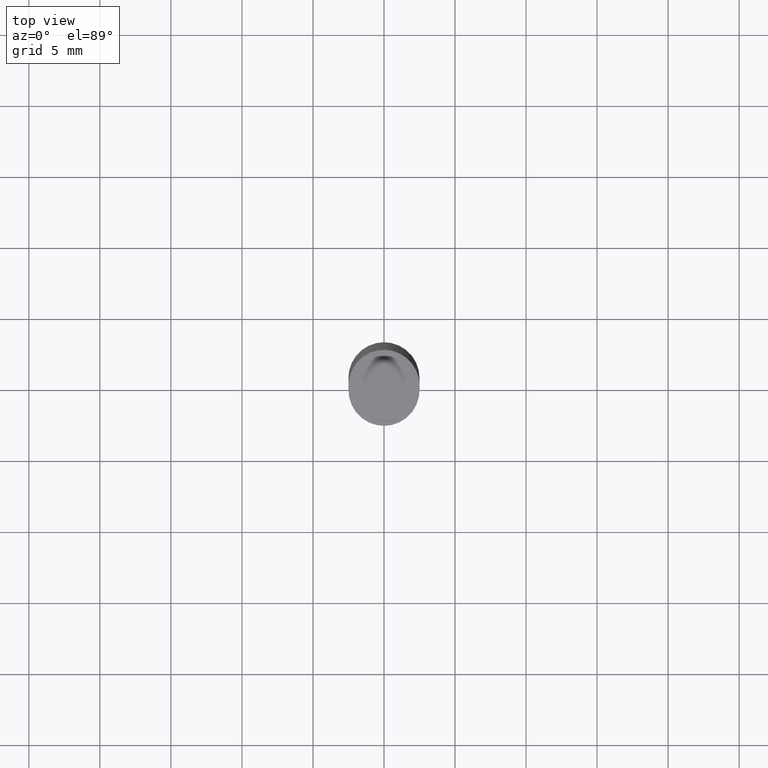
[diagram: clean part render]
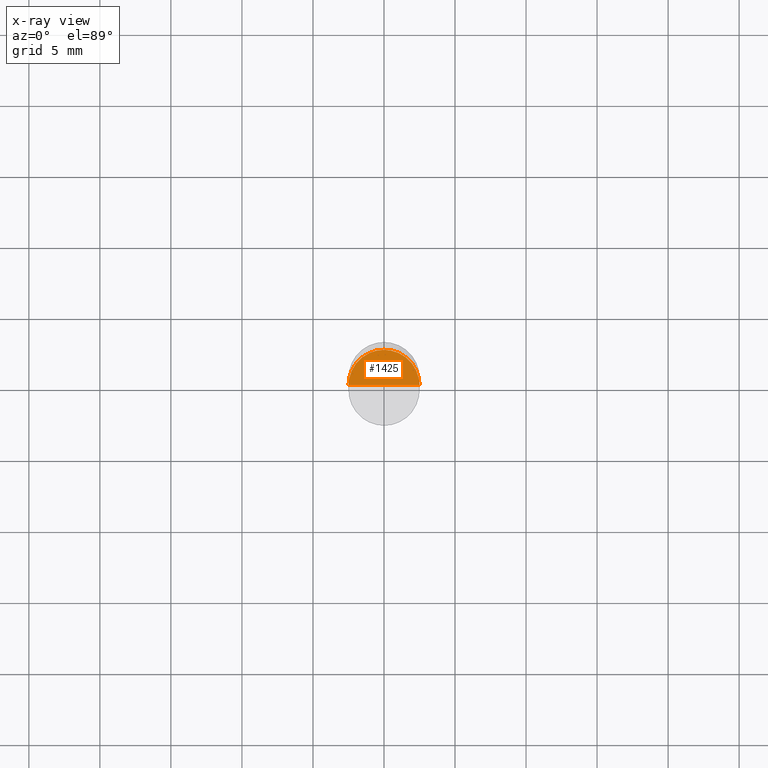
[diagram: x-ray — body ghosted, one internal face saturated and labeled with its STEP entity id]
A machine part, top view, then the same camera in x-ray: the body is ghosted and one INTERNAL B-rep face — a face not visible from any outside direction — is saturated and labeled: STEP entity #1425.
In plain terms, the highlighted face is a freeform B-spline surface patch.
Its self-contained STEP definition (entity closure, byte-faithful):
#1267=CARTESIAN_POINT('',(2.5,0.0,0.0));
#1268=CARTESIAN_POINT('',(2.5,2.5,0.0));
#1269=CARTESIAN_POINT('',(0.0,2.5,0.0));
#1270=CARTESIAN_POINT('',(-2.5,2.5,0.0));
#1271=CARTESIAN_POINT('',(-2.5,0.0,0.0));
#1272=CARTESIAN_POINT('',(0.0,0.0,0.0));
#1410=(
BOUNDED_SURFACE()
B_SPLINE_SURFACE(1,2,(
(#1272,#1272,#1272,#1272,#1272),
(#1267,#1268,#1269,#1270,#1271)
), .UNSPECIFIED.,.F.,.F.,.F.)
B_SPLINE_SURFACE_WITH_KNOTS((2,2),(3,2,3),(
0.0,1.0),(
0.0,0.5,1.0), .UNSPECIFIED.)
GEOMETRIC_REPRESENTATION_ITEM()
RATIONAL_B_SPLINE_SURFACE(((1.0,0.707106781187,1.0,0.707106781187,1.0),
(1.0,0.707106781187,1.0,0.707106781187,1.0)
))
REPRESENTATION_ITEM('')
SURFACE()
);
#1411=(
BOUNDED_CURVE()
B_SPLINE_CURVE(1,(#1271,#1272),.UNSPECIFIED.,.F.,.F.)
B_SPLINE_CURVE_WITH_KNOTS((2,2),
(0.0,1.0),.UNSPECIFIED.)
CURVE()
GEOMETRIC_REPRESENTATION_ITEM()
RATIONAL_B_SPLINE_CURVE((1.0,1.0))
REPRESENTATION_ITEM('')
);
#1412=(
BOUNDED_CURVE()
B_SPLINE_CURVE(1,(#1272,#1267),.UNSPECIFIED.,.F.,.F.)
B_SPLINE_CURVE_WITH_KNOTS((2,2),
(0.0,1.0),.UNSPECIFIED.)
CURVE()
GEOMETRIC_REPRESENTATION_ITEM()
RATIONAL_B_SPLINE_CURVE((1.0,1.0))
REPRESENTATION_ITEM('')
);
#1413=(
BOUNDED_CURVE()
B_SPLINE_CURVE(2,(#1267,#1268,#1269,#1270,#1271),.UNSPECIFIED.,.F.,.F.)
B_SPLINE_CURVE_WITH_KNOTS((3,2,3),
(0.0,0.5,1.0),.UNSPECIFIED.)
CURVE()
GEOMETRIC_REPRESENTATION_ITEM()
RATIONAL_B_SPLINE_CURVE((1.0,0.707106781187,1.0,0.707106781187,1.0))
REPRESENTATION_ITEM('')
);
#1414=VERTEX_POINT('',#1267);
#1415=VERTEX_POINT('',#1271);
#1416=VERTEX_POINT('',#1272);
#1417=EDGE_CURVE('',#1415,#1416,#1411,.T.);
#1418=EDGE_CURVE('',#1416,#1414,#1412,.T.);
#1419=EDGE_CURVE('',#1414,#1415,#1413,.T.);
#1420=ORIENTED_EDGE('',*,*,#1417,.T.);
#1421=ORIENTED_EDGE('',*,*,#1418,.T.);
#1422=ORIENTED_EDGE('',*,*,#1419,.T.);
#1423=EDGE_LOOP('',(#1420,#1421,#1422));
#1424=FACE_OUTER_BOUND('',#1423,.T.);
#1425=ADVANCED_FACE('',(#1424),#1410,.T.);